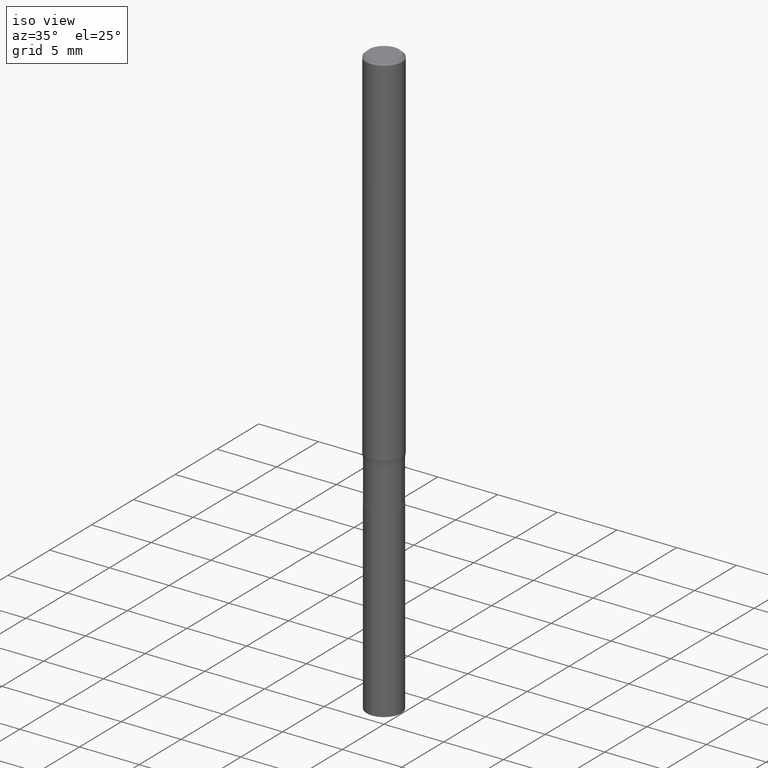
[diagram: clean part render]
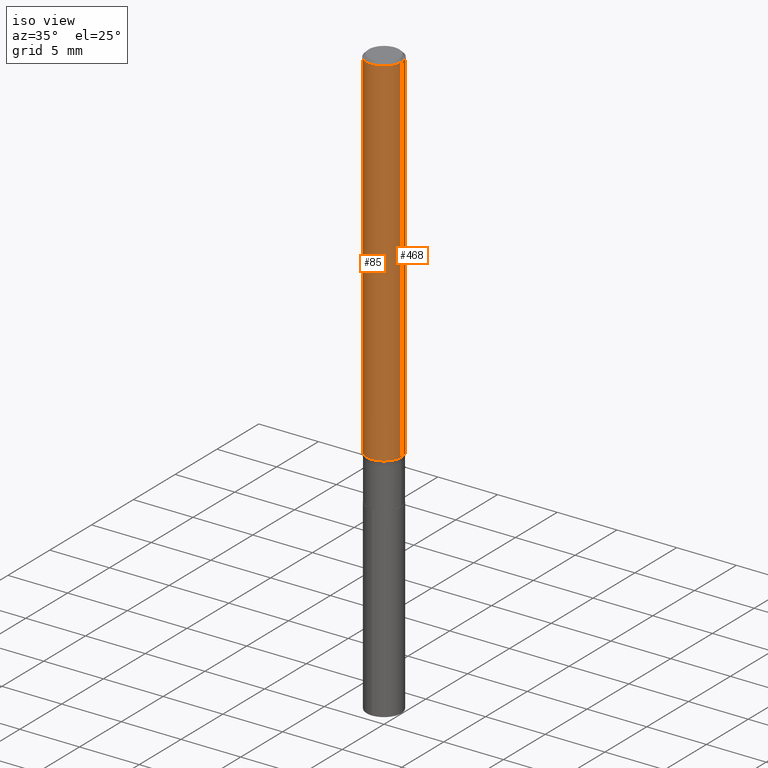
[diagram: same view with one multi-face feature highlighted, each face labeled with its STEP entity id]
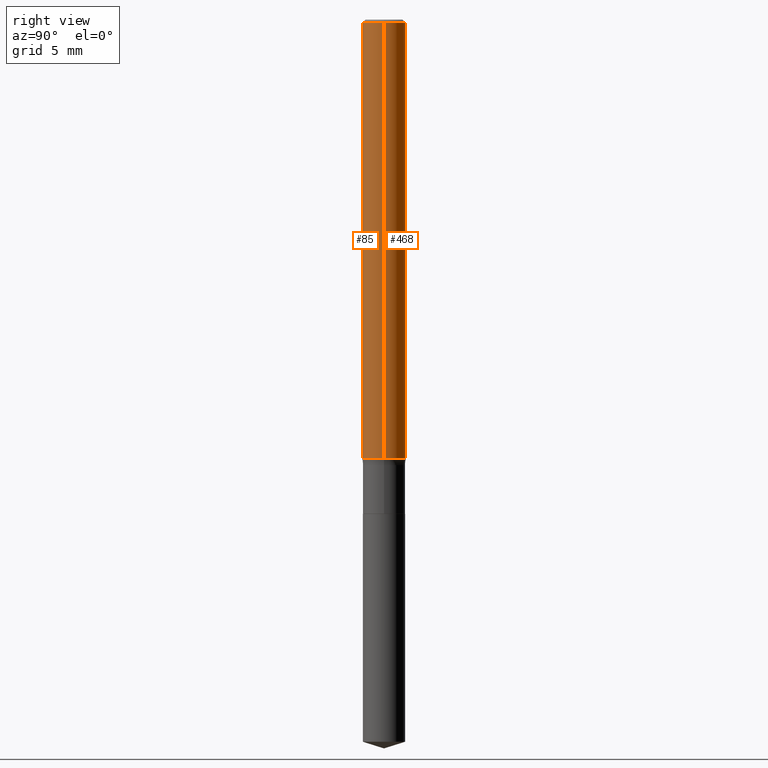
[diagram: same view with one multi-face feature highlighted, each face labeled with its STEP entity id]
A machine part, iso view. The highlighted faces form ONE feature: a constant-radius fillet chain: 2 tangent blend faces with common blend radius 1.4999 mm. The faces share edges in the B-rep.
A second angle (right view) of the same feature is appended — it is thin or edge-on in the first view.
Their STEP definitions:
[1] entity #468 (Cylinder):
#28 = VERTEX_POINT ( 'NONE', #134 ) ;
#30 = EDGE_CURVE ( 'NONE', #460, #367, #204, .T. ) ;
#45 = CARTESIAN_POINT ( 'NONE',  ( -0.05905000000000007465, 4.195754854663396902E-16, -2.904631170795525395E-30 ) ) ;
#51 = CIRCLE ( 'NONE', #114, 0.05905000000000015098 ) ;
#63 = DIRECTION ( 'NONE',  ( -2.445468806185136877E-29, 3.491481338843145188E-15, 1.000000000000000000 ) ) ;
#108 = CARTESIAN_POINT ( 'NONE',  ( 0.000000000000000000, 0.000000000000000000, 0.000000000000000000 ) ) ;
#114 = AXIS2_PLACEMENT_3D ( 'NONE', #121, #311, #240 ) ;
#119 = DIRECTION ( 'NONE',  ( 1.000000000000000000, -6.982962677686266711E-15, 0.000000000000000000 ) ) ;
#121 = CARTESIAN_POINT ( 'NONE',  ( 2.900492347091025857E-29, -4.141134361522908113E-15, -1.186068020886233754 ) ) ;
#134 = CARTESIAN_POINT ( 'NONE',  ( -0.05905000000000015098, -3.721558876056567831E-15, -1.186068020886233754 ) ) ;
#155 = ORIENTED_EDGE ( 'NONE', *, *, #256, .T. ) ;
#165 = CARTESIAN_POINT ( 'NONE',  ( 0.05905000000000007465, -4.123439461173745750E-16, 2.879382386107504074E-30 ) ) ;
#176 = FACE_OUTER_BOUND ( 'NONE', #412, .T. ) ;
#179 = CARTESIAN_POINT ( 'NONE',  ( -0.05904999999999999832, -1.666454593274514930E-15, -0.008857500000000059770 ) ) ;
#183 = VECTOR ( 'NONE', #63, 39.37007874015748143 ) ;
#204 = LINE ( 'NONE', #165, #183 ) ;
#224 = DIRECTION ( 'NONE',  ( 1.000000000000000000, -6.982962677686266711E-15, 4.876176775795936353E-29 ) ) ;
#227 = EDGE_CURVE ( 'NONE', #28, #420, #464, .T. ) ;
#239 = CARTESIAN_POINT ( 'NONE',  ( 0.05904999999999999832, -4.432697420761774278E-16, -0.008857500000000059770 ) ) ;
#240 = DIRECTION ( 'NONE',  ( 1.000000000000000000, -6.982962677686271444E-15, 0.000000000000000000 ) ) ;
#249 = EDGE_CURVE ( 'NONE', #367, #420, #477, .T. ) ;
#256 = EDGE_CURVE ( 'NONE', #460, #28, #51, .T. ) ;
#263 = DIRECTION ( 'NONE',  ( -2.445468806185136597E-29, 3.491481338843145583E-15, 1.000000000000000000 ) ) ;
#267 = AXIS2_PLACEMENT_3D ( 'NONE', #458, #428, #119 ) ;
#270 = ORIENTED_EDGE ( 'NONE', *, *, #249, .F. ) ;
#300 = DIRECTION ( 'NONE',  ( -2.445468806185136877E-29, 3.491481338843145188E-15, 1.000000000000000000 ) ) ;
#311 = DIRECTION ( 'NONE',  ( -2.445468806185136597E-29, 3.491481338843145583E-15, 1.000000000000000000 ) ) ;
#331 = CYLINDRICAL_SURFACE ( 'NONE', #353, 0.05905000000000007465 ) ;
#353 = AXIS2_PLACEMENT_3D ( 'NONE', #108, #263, #224 ) ;
#359 = VECTOR ( 'NONE', #300, 39.37007874015748143 ) ;
#367 = VERTEX_POINT ( 'NONE', #239 ) ;
#410 = ORIENTED_EDGE ( 'NONE', *, *, #30, .F. ) ;
#412 = EDGE_LOOP ( 'NONE', ( #155, #446, #270, #410 ) ) ;
#413 = CARTESIAN_POINT ( 'NONE',  ( 0.05905000000000015098, -4.553478307640282244E-15, -1.186068020886233754 ) ) ;
#420 = VERTEX_POINT ( 'NONE', #179 ) ;
#428 = DIRECTION ( 'NONE',  ( -2.445468806185136597E-29, 3.491481338843145583E-15, 1.000000000000000000 ) ) ;
#446 = ORIENTED_EDGE ( 'NONE', *, *, #227, .T. ) ;
#458 = CARTESIAN_POINT ( 'NONE',  ( 2.166073995078499248E-31, -3.092579595880337046E-17, -0.008857500000000059770 ) ) ;
#460 = VERTEX_POINT ( 'NONE', #413 ) ;
#464 = LINE ( 'NONE', #45, #359 ) ;
#468 = ADVANCED_FACE ( 'NONE', ( #176 ), #331, .T. ) ;
#477 = CIRCLE ( 'NONE', #267, 0.05904999999999999832 ) ;
[2] entity #85 (Cylinder):
#14 = CIRCLE ( 'NONE', #482, 0.05904999999999999832 ) ;
#28 = VERTEX_POINT ( 'NONE', #134 ) ;
#30 = EDGE_CURVE ( 'NONE', #460, #367, #204, .T. ) ;
#45 = CARTESIAN_POINT ( 'NONE',  ( -0.05905000000000007465, 4.195754854663396902E-16, -2.904631170795525395E-30 ) ) ;
#63 = DIRECTION ( 'NONE',  ( -2.445468806185136877E-29, 3.491481338843145188E-15, 1.000000000000000000 ) ) ;
#64 = EDGE_CURVE ( 'NONE', #28, #460, #319, .T. ) ;
#74 = CYLINDRICAL_SURFACE ( 'NONE', #294, 0.05905000000000007465 ) ;
#80 = ORIENTED_EDGE ( 'NONE', *, *, #227, .F. ) ;
#85 = ADVANCED_FACE ( 'NONE', ( #109 ), #74, .T. ) ;
#100 = EDGE_LOOP ( 'NONE', ( #80, #469, #440, #226 ) ) ;
#109 = FACE_OUTER_BOUND ( 'NONE', #100, .T. ) ;
#134 = CARTESIAN_POINT ( 'NONE',  ( -0.05905000000000015098, -3.721558876056567831E-15, -1.186068020886233754 ) ) ;
#165 = CARTESIAN_POINT ( 'NONE',  ( 0.05905000000000007465, -4.123439461173745750E-16, 2.879382386107504074E-30 ) ) ;
#179 = CARTESIAN_POINT ( 'NONE',  ( -0.05904999999999999832, -1.666454593274514930E-15, -0.008857500000000059770 ) ) ;
#183 = VECTOR ( 'NONE', #63, 39.37007874015748143 ) ;
#204 = LINE ( 'NONE', #165, #183 ) ;
#226 = ORIENTED_EDGE ( 'NONE', *, *, #304, .F. ) ;
#227 = EDGE_CURVE ( 'NONE', #28, #420, #464, .T. ) ;
#231 = CARTESIAN_POINT ( 'NONE',  ( 2.166073995078499248E-31, -3.092579595880337046E-17, -0.008857500000000059770 ) ) ;
#239 = CARTESIAN_POINT ( 'NONE',  ( 0.05904999999999999832, -4.432697420761774278E-16, -0.008857500000000059770 ) ) ;
#261 = DIRECTION ( 'NONE',  ( 1.000000000000000000, -6.982962677686266711E-15, 4.876176775795936353E-29 ) ) ;
#294 = AXIS2_PLACEMENT_3D ( 'NONE', #425, #414, #261 ) ;
#295 = DIRECTION ( 'NONE',  ( -2.445468806185136597E-29, 3.491481338843145583E-15, 1.000000000000000000 ) ) ;
#300 = DIRECTION ( 'NONE',  ( -2.445468806185136877E-29, 3.491481338843145188E-15, 1.000000000000000000 ) ) ;
#301 = CARTESIAN_POINT ( 'NONE',  ( 2.900492347091025857E-29, -4.141134361522908113E-15, -1.186068020886233754 ) ) ;
#304 = EDGE_CURVE ( 'NONE', #420, #367, #14, .T. ) ;
#319 = CIRCLE ( 'NONE', #364, 0.05905000000000015098 ) ;
#359 = VECTOR ( 'NONE', #300, 39.37007874015748143 ) ;
#364 = AXIS2_PLACEMENT_3D ( 'NONE', #301, #385, #422 ) ;
#367 = VERTEX_POINT ( 'NONE', #239 ) ;
#379 = DIRECTION ( 'NONE',  ( 1.000000000000000000, -6.982962677686266711E-15, 0.000000000000000000 ) ) ;
#385 = DIRECTION ( 'NONE',  ( -2.445468806185136597E-29, 3.491481338843145583E-15, 1.000000000000000000 ) ) ;
#413 = CARTESIAN_POINT ( 'NONE',  ( 0.05905000000000015098, -4.553478307640282244E-15, -1.186068020886233754 ) ) ;
#414 = DIRECTION ( 'NONE',  ( -2.445468806185136597E-29, 3.491481338843145583E-15, 1.000000000000000000 ) ) ;
#420 = VERTEX_POINT ( 'NONE', #179 ) ;
#422 = DIRECTION ( 'NONE',  ( 1.000000000000000000, -6.982962677686271444E-15, 0.000000000000000000 ) ) ;
#425 = CARTESIAN_POINT ( 'NONE',  ( 0.000000000000000000, 0.000000000000000000, 0.000000000000000000 ) ) ;
#440 = ORIENTED_EDGE ( 'NONE', *, *, #30, .T. ) ;
#460 = VERTEX_POINT ( 'NONE', #413 ) ;
#464 = LINE ( 'NONE', #45, #359 ) ;
#469 = ORIENTED_EDGE ( 'NONE', *, *, #64, .T. ) ;
#482 = AXIS2_PLACEMENT_3D ( 'NONE', #231, #295, #379 ) ;